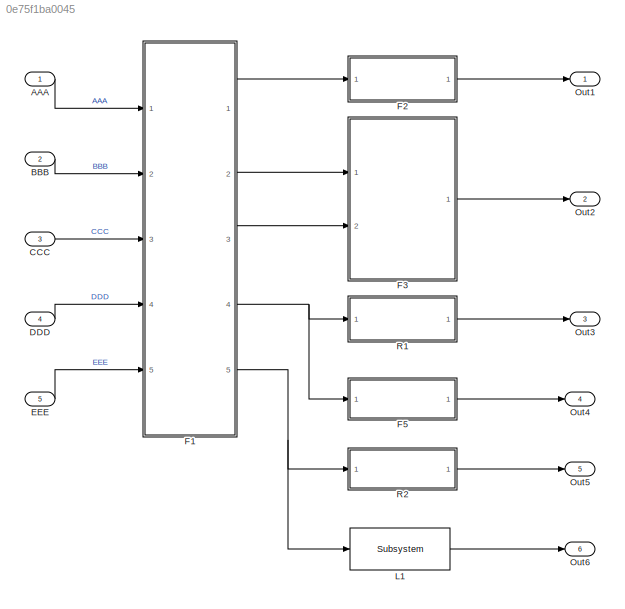
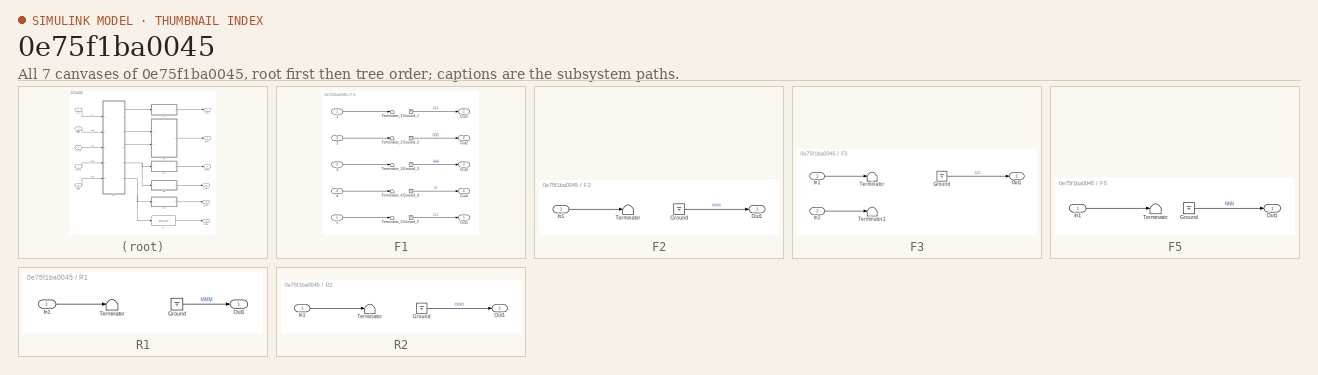
[diagram: thumbnail index - all 7 canvases of the model, root first then tree order]
MODEL slx_0e75f1ba0045
KIND model
CONFIG AbsTol = auto
CONFIG FixedStep = auto
CONFIG MaxStep = auto
CONFIG MinStep = auto
CONFIG RelTol = 1e-3
CONFIG SampleTimeConstraint = Unconstrained
CONFIG Solver = FixedStepDiscrete
CONFIG SolverMode = Auto
CONFIG SolverName = FixedStepDiscrete
CONFIG StartTime = 0.0
CONFIG StopTime = 10
BLOCK [Inport] AAA
  IconDisplay = Port number
BLOCK [Inport] BBB
  IconDisplay = Port number
  Port = 2
BLOCK [Inport] CCC
  IconDisplay = Port number
  Port = 3
BLOCK [Inport] DDD
  IconDisplay = Port number
  Port = 4
BLOCK [Inport] EEE
  IconDisplay = Port number
  Port = 5
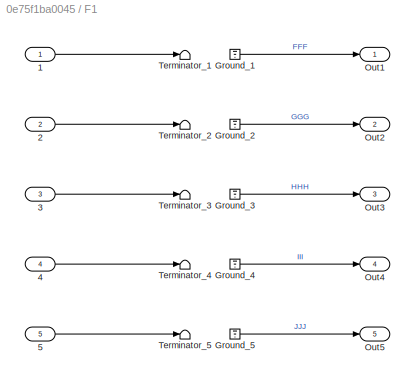
BLOCK [SubSystem] F1
  Ports = [5, 5]
  RequestExecContextInheritance = off
  TreatAsAtomicUnit = on
BLOCK [Inport] F1/1
  IconDisplay = Port number
BLOCK [Inport] F1/2
  IconDisplay = Port number
  Port = 2
BLOCK [Inport] F1/3
  IconDisplay = Port number
  Port = 3
BLOCK [Inport] F1/4
  IconDisplay = Port number
  Port = 4
BLOCK [Inport] F1/5
  IconDisplay = Port number
  Port = 5
BLOCK [Ground] F1/Ground_1
BLOCK [Ground] F1/Ground_2
BLOCK [Ground] F1/Ground_3
BLOCK [Ground] F1/Ground_4
BLOCK [Ground] F1/Ground_5
BLOCK [Outport] F1/Out1
  IconDisplay = Port number
BLOCK [Outport] F1/Out2
  IconDisplay = Port number
  Port = 2
BLOCK [Outport] F1/Out3
  IconDisplay = Port number
  Port = 3
BLOCK [Outport] F1/Out4
  IconDisplay = Port number
  Port = 4
BLOCK [Outport] F1/Out5
  IconDisplay = Port number
  Port = 5
BLOCK [Terminator] F1/Terminator_1
BLOCK [Terminator] F1/Terminator_2
BLOCK [Terminator] F1/Terminator_3
BLOCK [Terminator] F1/Terminator_4
BLOCK [Terminator] F1/Terminator_5
BLOCK [SubSystem] F2
  Ports = [1, 1]
  RequestExecContextInheritance = off
  TreatAsAtomicUnit = on
BLOCK [Ground] F2/Ground
BLOCK [Inport] F2/In1
  IconDisplay = Port number
BLOCK [Outport] F2/Out1
  IconDisplay = Port number
BLOCK [Terminator] F2/Terminator
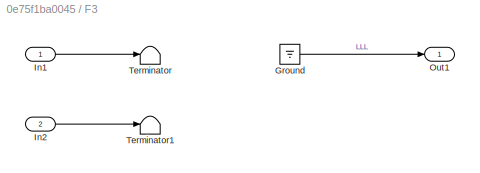
BLOCK [SubSystem] F3
  Ports = [2, 1]
  RequestExecContextInheritance = off
  TreatAsAtomicUnit = on
BLOCK [Ground] F3/Ground
BLOCK [Inport] F3/In1
  IconDisplay = Port number
BLOCK [Inport] F3/In2
  IconDisplay = Port number
  Port = 2
BLOCK [Outport] F3/Out1
  IconDisplay = Port number
BLOCK [Terminator] F3/Terminator
BLOCK [Terminator] F3/Terminator1
BLOCK [SubSystem] F5
  Ports = [1, 1]
  RequestExecContextInheritance = off
  TreatAsAtomicUnit = on
BLOCK [Ground] F5/Ground
BLOCK [Inport] F5/In1
  IconDisplay = Port number
BLOCK [Outport] F5/Out1
  IconDisplay = Port number
BLOCK [Terminator] F5/Terminator
BLOCK [Reference] L1  REF=lib/Subsystem  (lib defined in slx_8e0b7e7613f0, slx_8fc754c0eda6, +7 more)
  Ports = [1, 1]
  SourceBlock = lib/Subsystem
  SourceType = SubSystem
BLOCK [Outport] Out1
  IconDisplay = Port number
BLOCK [Outport] Out2
  IconDisplay = Port number
  Port = 2
BLOCK [Outport] Out3
  IconDisplay = Port number
  Port = 3
BLOCK [Outport] Out4
  IconDisplay = Port number
  Port = 4
BLOCK [Outport] Out5
  IconDisplay = Port number
  Port = 5
BLOCK [Outport] Out6
  IconDisplay = Port number
  Port = 6
BLOCK [SubSystem] R1
  AttributesFormatString = %<Description>
  Description = 再利用可能関数
  Ports = [1, 1]
  RTWSystemCode = Reusable function
  RequestExecContextInheritance = off
  TreatAsAtomicUnit = on
BLOCK [Ground] R1/Ground
BLOCK [Inport] R1/In1
  IconDisplay = Port number
BLOCK [Outport] R1/Out1
  IconDisplay = Port number
BLOCK [Terminator] R1/Terminator
BLOCK [SubSystem] R2
  AttributesFormatString = %<Description>
  Description = 再利用可能関数
  Ports = [1, 1]
  RTWSystemCode = Reusable function
  RequestExecContextInheritance = off
  TreatAsAtomicUnit = on
BLOCK [Ground] R2/Ground
BLOCK [Inport] R2/In1
  IconDisplay = Port number
BLOCK [Outport] R2/Out1
  IconDisplay = Port number
BLOCK [Terminator] R2/Terminator
LINE AAA:1 -> F1:1
LINE BBB:1 -> F1:2
LINE CCC:1 -> F1:3
LINE DDD:1 -> F1:4
LINE EEE:1 -> F1:5
LINE F1/1:1 -> F1/Terminator_1:1
LINE F1/2:1 -> F1/Terminator_2:1
LINE F1/3:1 -> F1/Terminator_3:1
LINE F1/4:1 -> F1/Terminator_4:1
LINE F1/5:1 -> F1/Terminator_5:1
LINE F1/Ground_1:1 -> F1/Out1:1
LINE F1/Ground_2:1 -> F1/Out2:1
LINE F1/Ground_3:1 -> F1/Out3:1
LINE F1/Ground_4:1 -> F1/Out4:1
LINE F1/Ground_5:1 -> F1/Out5:1
LINE F1:1 -> F2:1
LINE F1:2 -> F3:1
LINE F1:3 -> F3:2
NET F1:4 -> F5:1, R1:1
NET F1:5 -> L1:1, R2:1
LINE F2/Ground:1 -> F2/Out1:1
LINE F2/In1:1 -> F2/Terminator:1
LINE F2:1 -> Out1:1
LINE F3/Ground:1 -> F3/Out1:1
LINE F3/In1:1 -> F3/Terminator:1
LINE F3/In2:1 -> F3/Terminator1:1
LINE F3:1 -> Out2:1
LINE F5/Ground:1 -> F5/Out1:1
LINE F5/In1:1 -> F5/Terminator:1
LINE F5:1 -> Out4:1
LINE L1:1 -> Out6:1
LINE R1/Ground:1 -> R1/Out1:1
LINE R1/In1:1 -> R1/Terminator:1
LINE R1:1 -> Out3:1
LINE R2/Ground:1 -> R2/Out1:1
LINE R2/In1:1 -> R2/Terminator:1
LINE R2:1 -> Out5:1
note: NET lines group one-source signal fan-out (src -> all destinations, sorted); 1:1 wires keep LINE
